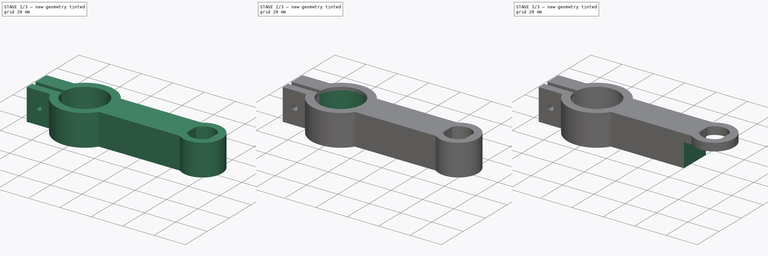
[diagram: build sequence overview — one tinted view per stage of 3, left to right]
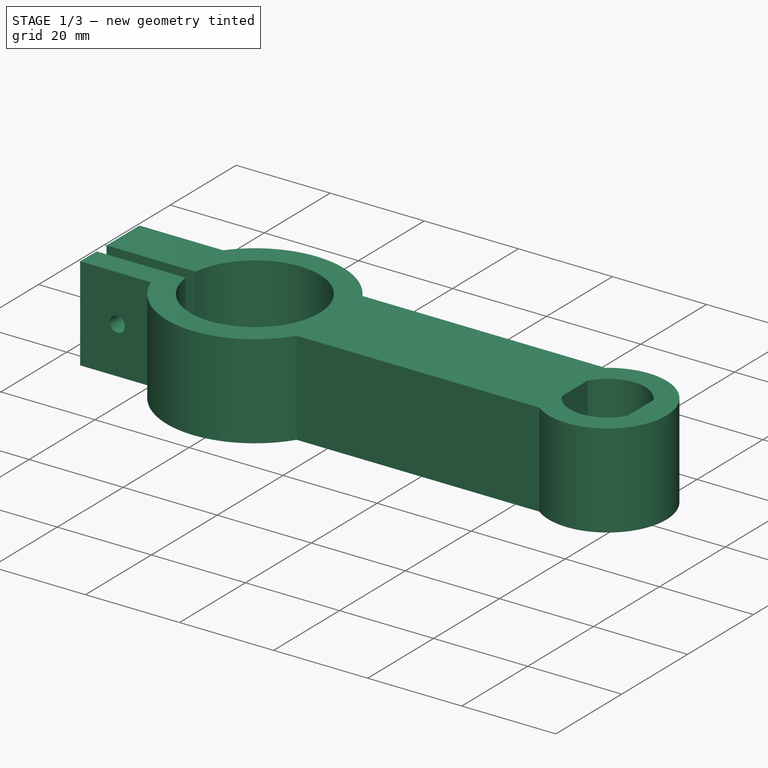
[diagram: stage 1 of 3 — iso view after this stage's code; geometry added in this stage tinted green]
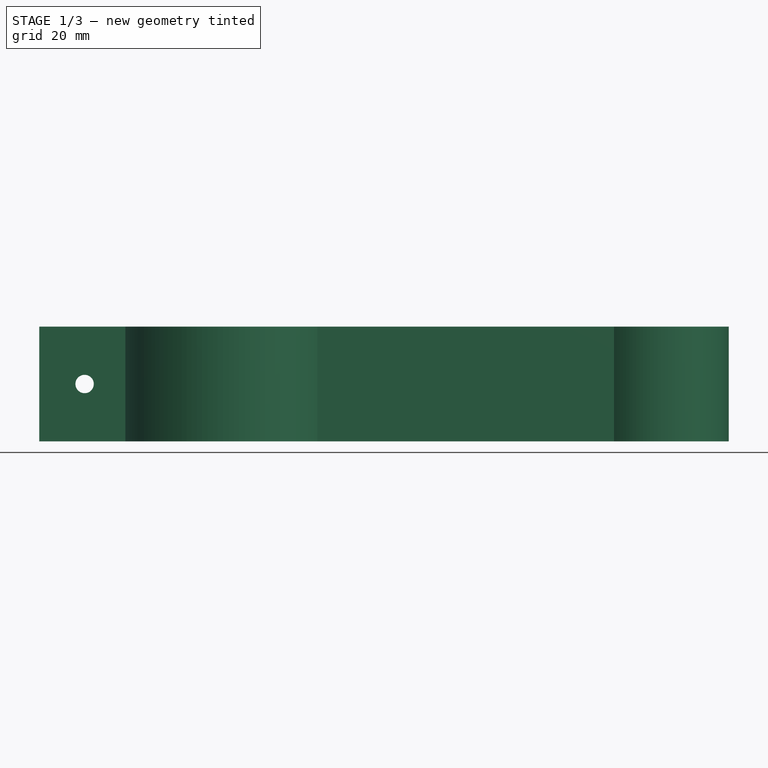
[diagram: stage 1 of 3 — front view after this stage's code; geometry added in this stage tinted green]
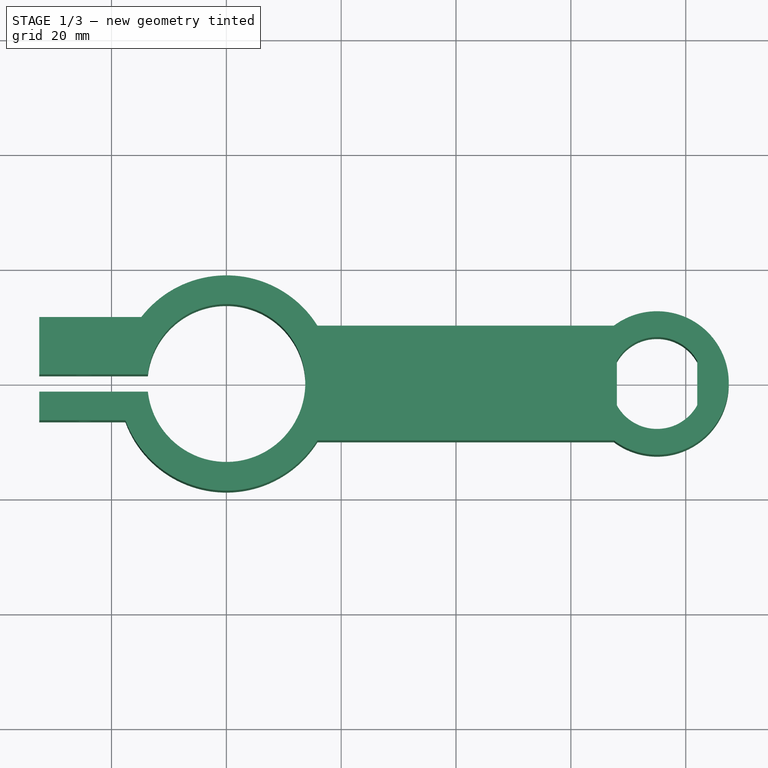
[diagram: stage 1 of 3 — top view after this stage's code; geometry added in this stage tinted green]
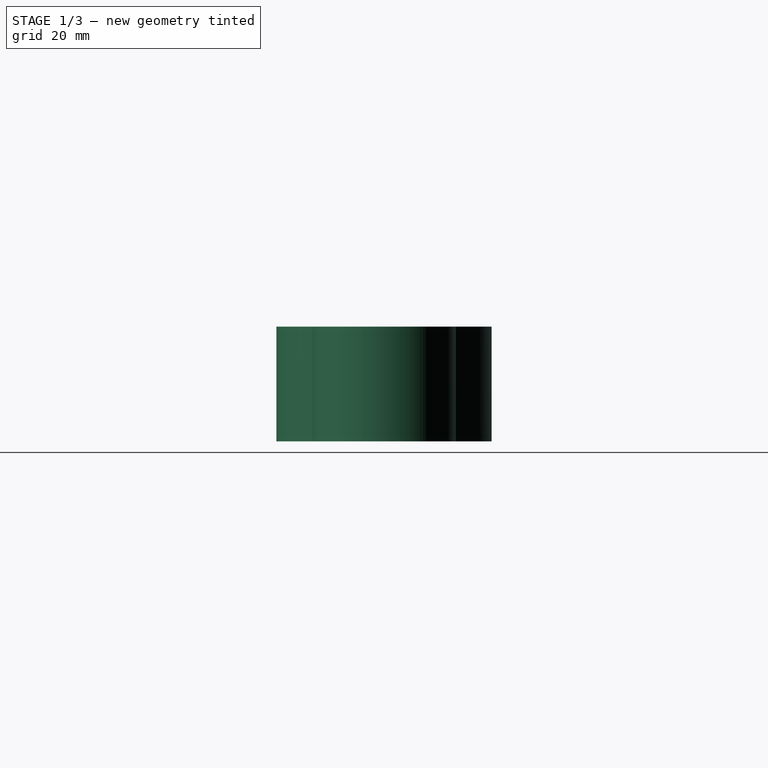
[diagram: stage 1 of 3 — right view after this stage's code; geometry added in this stage tinted green]
FCSTD DOCUMENT  (FreeCAD 1.0R39319 (Git))
Label: lteAntennaMount
License: All rights reserved
LicenseURL: https://en.wikipedia.org/wiki/All_rights_reserved
objects: Sketcher::SketchObject×6, PartDesign::Pocket×4, PartDesign::Pad×1, PartDesign::Groove×1, PartDesign::Body×1
note: 31 computed .brp shape members not serialized (recipe doc carries the construction recipe); baked Part::Feature solids carry a one-line shape summary decoded from their .brp

FEATURE [Sketcher::SketchObject] Sketch
  ArcFitTolerance = 1e-06
  AttachmentSupport = -> [XY_Plane]
  FullyConstrained = true
  MakeInternals = false
  MapMode = 5
  sketch-geometry (16):
    g0: ArcOfCircle CenterX=0 CenterY=0 CenterZ=0 NormalX=0 NormalY=0 NormalZ=1 AngleXU=0 Radius=18.75 StartAngle=3.49561 EndAngle=5.72065
    g1: LineSegment StartX=-13.6679 StartY=1.5 StartZ=0 EndX=-32.5873 EndY=1.5 EndZ=0
    g2: LineSegment StartX=-32.5873 StartY=1.5 StartZ=0 EndX=-32.5873 EndY=11.5 EndZ=0
    g3: LineSegment StartX=-32.5873 StartY=11.5 StartZ=0 EndX=-14.8092 EndY=11.5 EndZ=0
    g4: LineSegment StartX=-17.5873 StartY=-6.5 StartZ=0 EndX=-32.5873 EndY=-6.5 EndZ=0
    g5: LineSegment StartX=-32.5873 StartY=-6.5 StartZ=0 EndX=-32.5873 EndY=-1.5 EndZ=0
    g6: LineSegment StartX=-32.5873 StartY=-1.5 StartZ=0 EndX=-13.6679 EndY=-1.5 EndZ=0
    g7: ArcOfCircle CenterX=0 CenterY=0 CenterZ=0 NormalX=0 NormalY=0 NormalZ=1 AngleXU=0 Radius=13.75 StartAngle=3.2509 EndAngle=9.31547
    g8: LineSegment StartX=67.5 StartY=10 StartZ=0 EndX=15.8607 EndY=10 EndZ=0
    g9: LineSegment StartX=67.5 StartY=-10 StartZ=0 EndX=15.8607 EndY=-10 EndZ=0
    g10: ArcOfCircle CenterX=0 CenterY=0 CenterZ=0 NormalX=0 NormalY=0 NormalZ=1 AngleXU=0 Radius=18.75 StartAngle=0.562536 EndAngle=2.48132
    g11: ArcOfCircle CenterX=75 CenterY=-7.7e-15 CenterZ=0 NormalX=0 NormalY=0 NormalZ=1 AngleXU=0 Radius=12.5 StartAngle=4.06889 EndAngle=8.49748
    g12: ArcOfCircle CenterX=75 CenterY=-7.7e-15 CenterZ=0 NormalX=0 NormalY=0 NormalZ=1 AngleXU=0 Radius=8 StartAngle=3.64695 EndAngle=5.77782
    g13: LineSegment StartX=68 StartY=3.87298 StartZ=0 EndX=68 EndY=-3.87298 EndZ=0
    g14: LineSegment StartX=82 StartY=3.87298 StartZ=0 EndX=82 EndY=-3.87298 EndZ=0
    g15: ArcOfCircle CenterX=75 CenterY=-7.7e-15 CenterZ=0 NormalX=0 NormalY=0 NormalZ=1 AngleXU=0 Radius=8 StartAngle=0.505361 EndAngle=2.63623
  constraints (51):
    c: Diameter(g0) = 37.5
    c: Coincident(g0,g-1)
    c: Horizontal(g1)
    c: Coincident(g2,g1)
    c: Vertical(g2)
    c: Coincident(g3,g2)
    c: Horizontal(g3)
    c: DistanceY(g2,g2) = 10
    c: DistanceY(g-1,g1) = 1.5
    c: Coincident(g3,g10)
    c: Coincident(g4,g0)
    c: Horizontal(g4)
    c: Coincident(g5,g4)
    c: Vertical(g5)
    c: Coincident(g6,g5)
    c: Horizontal(g6)
    c: Coincident(g7,g0)
    c: Coincident(g7,g1)
    c: Coincident(g7,g6)
    c: Radius(g7) = 13.75
    c: DistanceX(g4,g4) = 15
    c: Horizontal(g8)
    c: Horizontal(g9)
    c: PointOnObject(g8,g10)
    c: DistanceY(g9,g8) = 20
    c: Equal(g0,g10)
    c: Coincident(g0,g9)
    c: PointOnObject(g10,g8)
    c: Coincident(g0,g10)
    c: DistanceY(g5,g5) = 5
    c: Distance(g-1,g6) = 1.5
    c: Equal(g1,g6)
    c: Diameter(g11) = 25
    c: Coincident(g11,g8)
    c: Coincident(g11,g9)
    c: Equal(g8,g9)
    c: Coincident(g12,g11)
    c: Diameter(g12) = 16
    c: Vertical(g13)
    c: PointOnObject(g14,g15)
    c: Parallel(g14,g13)
    c: Equal(g13,g14)
    c: Distance(g14,g13) = 14
    c: Coincident(g15,g13)
    c: Coincident(g12,g13)
    c: Equal(g12,g15)
    c: Coincident(g12,g14)
    c: PointOnObject(g15,g14)
    c: Coincident(g12,g15)
    c: Distance(g-1,g8) = 10
    c: DistanceX(g-1,g11) = 75
FEATURE [PartDesign::Pad] Pad
  Direction = (0,0,1)
  Length = 20
  Length2 = 10
  Midplane = true
  Profile = -> Sketch
  ReferenceAxis = -> Sketch [N_Axis]
  Refine = true
  Suppressed = false
  Type = 0
FEATURE [Sketcher::SketchObject] Sketch001
  ArcFitTolerance = 1e-06
  AttachmentSupport = -> [Pad]
  FullyConstrained = true
  MakeInternals = false
  MapMode = 5
  Placement = pos=(0,-6.5,0) rot=(1,0,0;1.5708rad)
  sketch-geometry (1):
    g0: Circle CenterX=-24.6847 CenterY=0 CenterZ=0 NormalX=0 NormalY=0 NormalZ=1 AngleXU=0 Radius=1.6
  constraints (3):
    c: PointOnObject(g0,g-1)
    c: Distance(g0,g-3) = 7.5
    c: Diameter(g0) = 3.2
FEATURE [PartDesign::Pocket] Pocket
  BaseFeature = -> Pad
  Direction = (0,1,-2e-16)
  Length = 0
  Length2 = 5
  Profile = -> Sketch001
  ReferenceAxis = -> Sketch001 [N_Axis]
  Refine = true
  Suppressed = false
  Type = 1
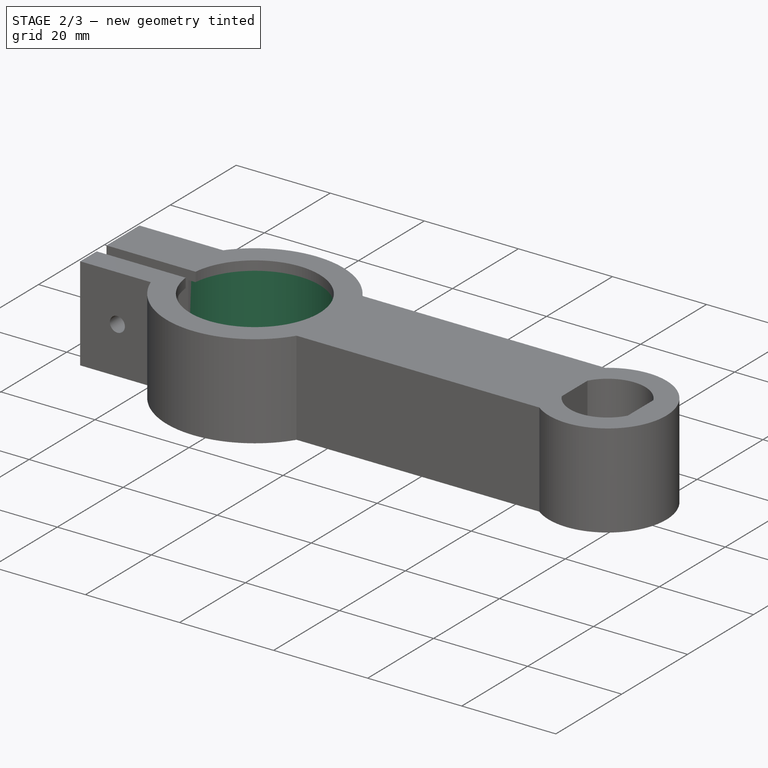
[diagram: stage 2 of 3 — iso view after this stage's code; geometry added in this stage tinted green]
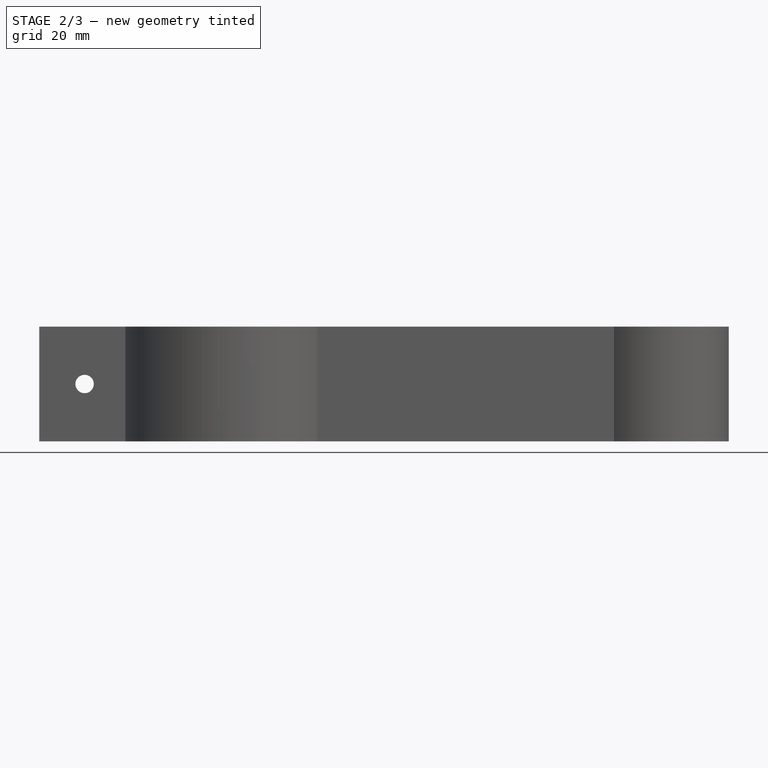
[diagram: stage 2 of 3 — front view after this stage's code; geometry added in this stage tinted green]
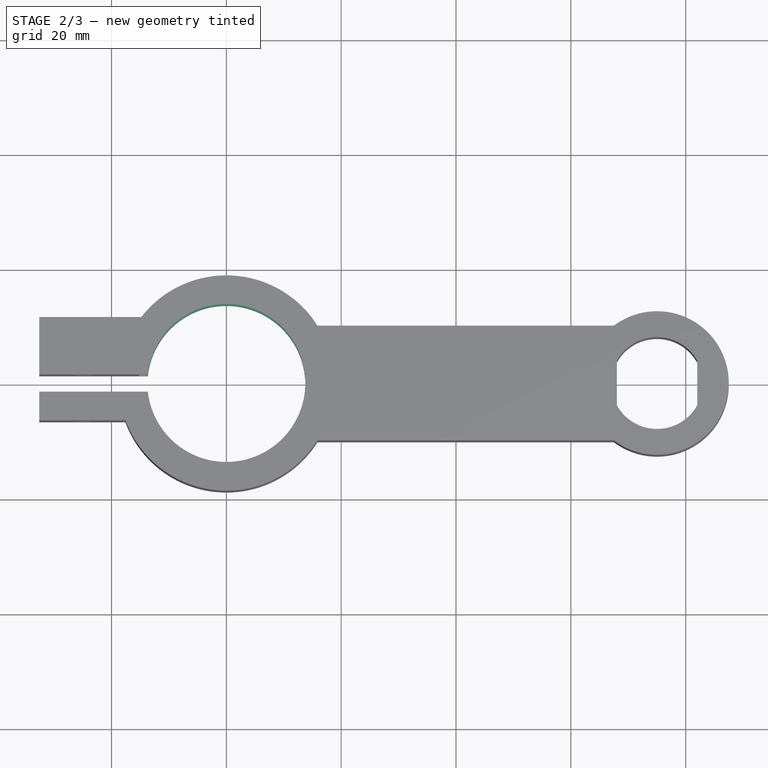
[diagram: stage 2 of 3 — top view after this stage's code; geometry added in this stage tinted green]
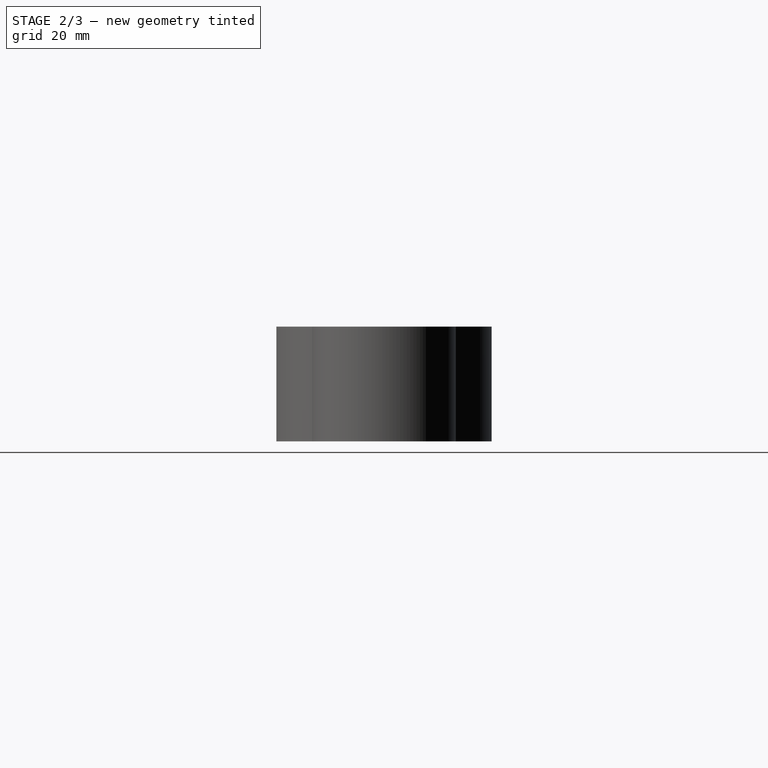
[diagram: stage 2 of 3 — right view after this stage's code; geometry added in this stage tinted green]
FEATURE [Sketcher::SketchObject] Sketch003
  ArcFitTolerance = 1e-06
  FullyConstrained = true
  MakeInternals = false
  MapMode = 5
  Placement = pos=(0,-12.5,0) rot=(1,0,0;1.5708rad)
  sketch-geometry (7):
    g0: LineSegment StartX=100.061 StartY=3.4641 StartZ=0 EndX=97.0614 EndY=1.73205 EndZ=0
    g1: LineSegment StartX=97.0614 StartY=1.73205 StartZ=0 EndX=97.0614 EndY=-1.73205 EndZ=0
    g2: LineSegment StartX=97.0614 StartY=-1.73205 StartZ=0 EndX=100.061 EndY=-3.4641 EndZ=0
    g3: LineSegment StartX=100.061 StartY=-3.4641 StartZ=0 EndX=103.061 EndY=-1.73205 EndZ=0
    g4: LineSegment StartX=103.061 StartY=-1.73205 StartZ=0 EndX=103.061 EndY=1.73205 EndZ=0
    g5: LineSegment StartX=103.061 StartY=1.73205 StartZ=0 EndX=100.061 EndY=3.4641 EndZ=0
    g6: Circle [constr] CenterX=100.061 CenterY=0 CenterZ=0 NormalX=0 NormalY=0 NormalZ=1 AngleXU=0 Radius=3.4641
  constraints (17):
    c: Coincident(g0,g1)
    c: Coincident(g1,g2)
    c: Coincident(g2,g3)
    c: Coincident(g3,g4)
    c: Coincident(g4,g5)
    c: Coincident(g5,g0)
    c: Equal(g0, g1-g5) x5
    c: PointOnObject(g0,g6)
    c: PointOnObject(g1,g6)
    c: PointOnObject(g2,g6)
    c: PointOnObject(g3,g6)
    c: PointOnObject(g4,g6)
    c: PointOnObject(g5,g6)
    c: PointOnObject(g6,g-1)
    c: Distance(g2,g5) = 6
    c: Distance(g6,g-3) = 7.5
    c: Parallel(g4,g-3)
FEATURE [PartDesign::Pocket] Pocket002
  BaseFeature = -> Pocket
  Direction = (0,1,-2e-16)
  Length = 5
  Length2 = 5
  Profile = -> Sketch003
  ReferenceAxis = -> Sketch003 [N_Axis]
  Refine = true
  Suppressed = false
  Type = 0
FEATURE [Sketcher::SketchObject] Sketch005
  ArcFitTolerance = 1e-06
  AttachmentSupport = -> [YZ_Plane]
  FullyConstrained = true
  MakeInternals = false
  MapMode = 5
  Placement = pos=(0,0,0) rot=(0.57735,0.57735,0.57735;2.0944rad)
  sketch-geometry (4):
    g0: LineSegment StartX=15.25 StartY=-8 StartZ=0 EndX=15.25 EndY=8 EndZ=0
    g1: LineSegment StartX=15.25 StartY=8 StartZ=0 EndX=0 EndY=8 EndZ=0
    g2: LineSegment StartX=15.25 StartY=-8 StartZ=0 EndX=0 EndY=-8 EndZ=0
    g3: LineSegment StartX=0 StartY=-8 StartZ=0 EndX=0 EndY=8 EndZ=0
  constraints (11):
    c: DistanceY(g0,g0) = 16
    c: Symmetric(g0,g0,g-1)
    c: Coincident(g1,g0)
    c: PointOnObject(g1,g-2)
    c: Horizontal(g1)
    c: Coincident(g2,g0)
    c: PointOnObject(g2,g-2)
    c: Horizontal(g2)
    c: Coincident(g3,g2)
    c: Coincident(g3,g1)
    c: DistanceX(g1,g1) = 15.25
FEATURE [PartDesign::Groove] Groove
  Angle = 360
  Angle2 = 60
  Axis = (0,0,1)
  Base = (0,0,0)
  BaseFeature = -> Pocket002
  Profile = -> Sketch005
  ReferenceAxis = -> Sketch005 [V_Axis]
  Refine = true
  Suppressed = false
  Type = 0
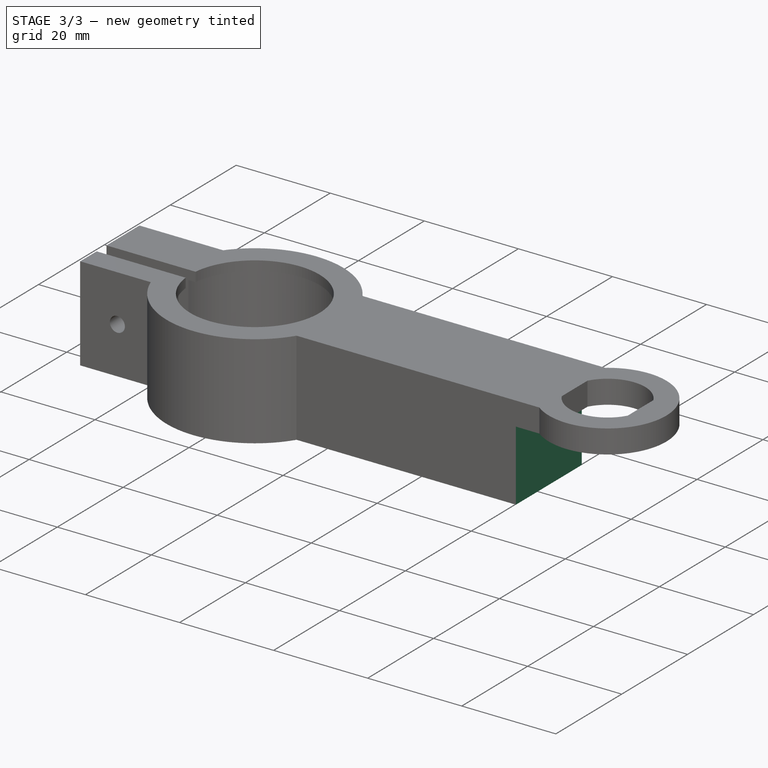
[diagram: stage 3 of 3 — iso view after this stage's code; geometry added in this stage tinted green]
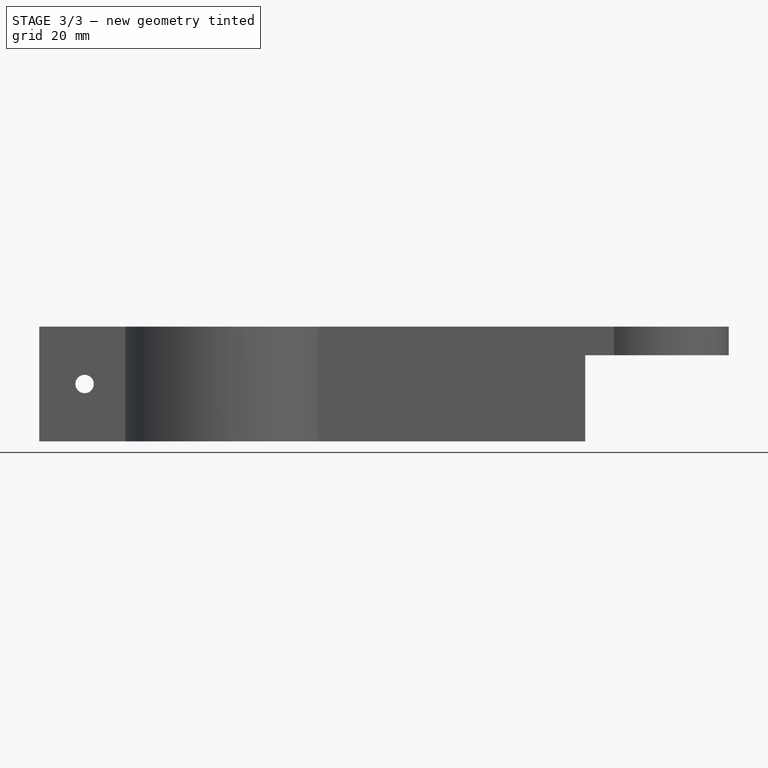
[diagram: stage 3 of 3 — front view after this stage's code; geometry added in this stage tinted green]
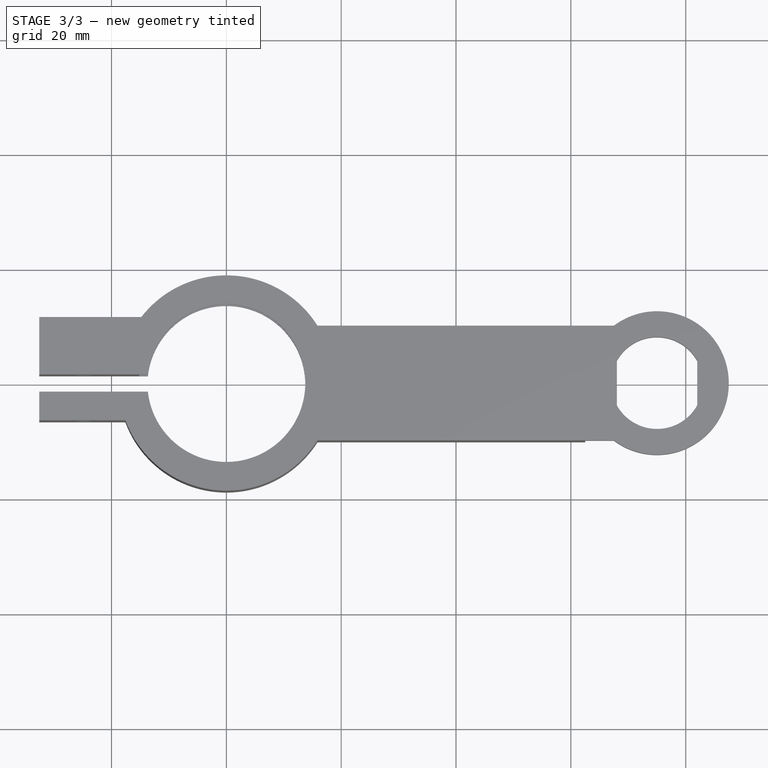
[diagram: stage 3 of 3 — top view after this stage's code; geometry added in this stage tinted green]
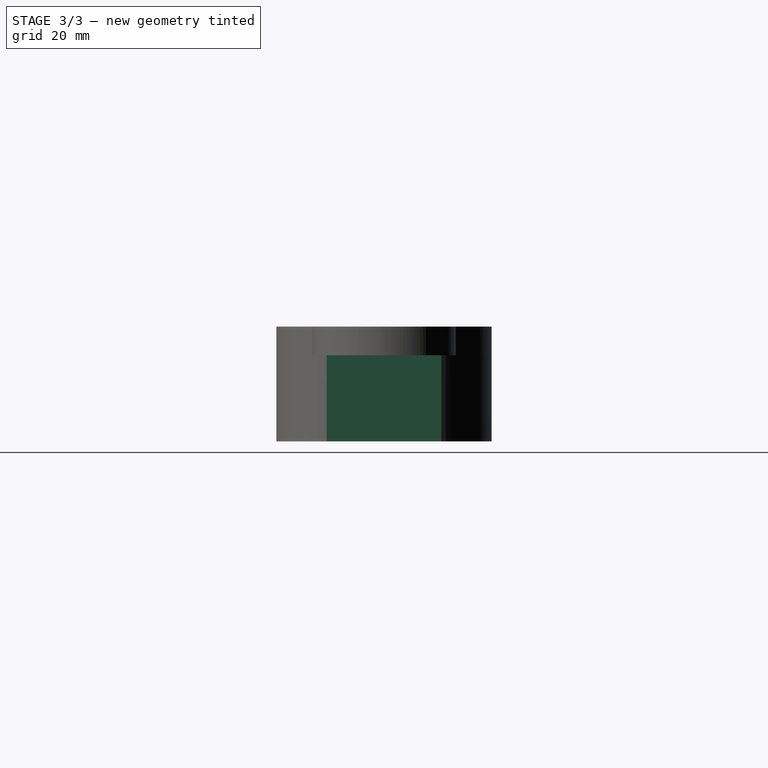
[diagram: stage 3 of 3 — right view after this stage's code; geometry added in this stage tinted green]
FEATURE [Sketcher::SketchObject] Sketch006
  ArcFitTolerance = 1e-06
  AttachmentSupport = -> [Groove]
  ExternalGeometry = -> [Groove]
  FullyConstrained = true
  MakeInternals = false
  MapMode = 5
  Placement = pos=(0,0,-10) rot=(1,0,0;3.14159rad)
  sketch-geometry (5):
    g0: Circle [constr] CenterX=75 CenterY=-2.8e-15 CenterZ=0 NormalX=0 NormalY=0 NormalZ=1 AngleXU=0 Radius=12.5
    g1: ArcOfCircle CenterX=75 CenterY=-2.8e-15 CenterZ=0 NormalX=0 NormalY=0 NormalZ=1 AngleXU=0 Radius=12.5 StartAngle=4.06889 EndAngle=8.49748
    g2: LineSegment StartX=67.5 StartY=10 StartZ=0 EndX=62.5 EndY=10 EndZ=0
    g3: LineSegment StartX=67.5 StartY=-10 StartZ=0 EndX=62.5 EndY=-10 EndZ=0
    g4: LineSegment StartX=62.5 StartY=-10 StartZ=0 EndX=62.5 EndY=10 EndZ=0
  constraints (13):
    c: Coincident(g0,g-4)
    c: Equal(g0,g-4)
    c: Coincident(g1,g0)
    c: Coincident(g1,g-4)
    c: Coincident(g2,g1)
    c: PointOnObject(g2,g-3)
    c: Coincident(g3,g1)
    c: PointOnObject(g3,g-5)
    c: Horizontal(g3)
    c: Coincident(g4,g3)
    c: Coincident(g4,g2)
    c: Equal(g3,g2)
    c: Tangent(g4,g0)
FEATURE [PartDesign::Pocket] Pocket003
  BaseFeature = -> Groove
  Direction = (0,0,1)
  Length = 15
  Length2 = 5
  Profile = -> Sketch006
  ReferenceAxis = -> Sketch006 [N_Axis]
  Refine = true
  Suppressed = false
  Type = 0
FEATURE [Sketcher::SketchObject] Sketch007
  ArcFitTolerance = 1e-06
  AttachmentSupport = -> [Pocket003]
  ExternalGeometry = -> [Pocket003]
  FullyConstrained = true
  MakeInternals = false
  MapMode = 5
  Placement = pos=(0,11.5,0) rot=(0,0.707107,0.707107;3.14159rad)
  sketch-geometry (7):
    g0: LineSegment StartX=24.6847 StartY=3.31976 StartZ=0 EndX=21.8097 EndY=1.65988 EndZ=0
    g1: LineSegment StartX=21.8097 StartY=1.65988 StartZ=0 EndX=21.8097 EndY=-1.65988 EndZ=0
    g2: LineSegment StartX=21.8097 StartY=-1.65988 StartZ=0 EndX=24.6847 EndY=-3.31976 EndZ=0
    g3: LineSegment StartX=24.6847 StartY=-3.31976 StartZ=0 EndX=27.5597 EndY=-1.65988 EndZ=0
    g4: LineSegment StartX=27.5597 StartY=-1.65988 StartZ=0 EndX=27.5597 EndY=1.65988 EndZ=0
    g5: LineSegment StartX=27.5597 StartY=1.65988 StartZ=0 EndX=24.6847 EndY=3.31976 EndZ=0
    g6: Circle [constr] CenterX=24.6847 CenterY=-4e-15 CenterZ=0 NormalX=0 NormalY=0 NormalZ=1 AngleXU=0 Radius=3.31976
  constraints (16):
    c: Coincident(g0,g1)
    c: Coincident(g1,g2)
    c: Coincident(g2,g3)
    c: Coincident(g3,g4)
    c: Coincident(g4,g5)
    c: Coincident(g5,g0)
    c: Equal(g0, g1-g5) x5
    c: PointOnObject(g0,g6)
    c: PointOnObject(g1,g6)
    c: PointOnObject(g2,g6)
    c: PointOnObject(g3,g6)
    c: PointOnObject(g4,g6)
    c: PointOnObject(g5,g6)
    c: Coincident(g6,g-3)
    c: Distance(g4,g1) = 5.75
    c: Perpendicular(g-1,g4)
FEATURE [PartDesign::Pocket] Pocket004
  BaseFeature = -> Pocket003
  Direction = (0,-1,2e-16)
  Length = 2.5
  Length2 = 5
  Profile = -> Sketch007
  ReferenceAxis = -> Sketch007 [N_Axis]
  Refine = true
  Suppressed = false
  Type = 0
FEATURE [PartDesign::Body] Body
  AllowCompound = false
  Group = -> [Sketch,Pad,Sketch001,Pocket,Sketch003,Pocket002,Sketch005,Groove,Sketch006,Pocket003,Sketch007,Pocket004]
  Origin = -> Origin
  Tip = -> Pocket004
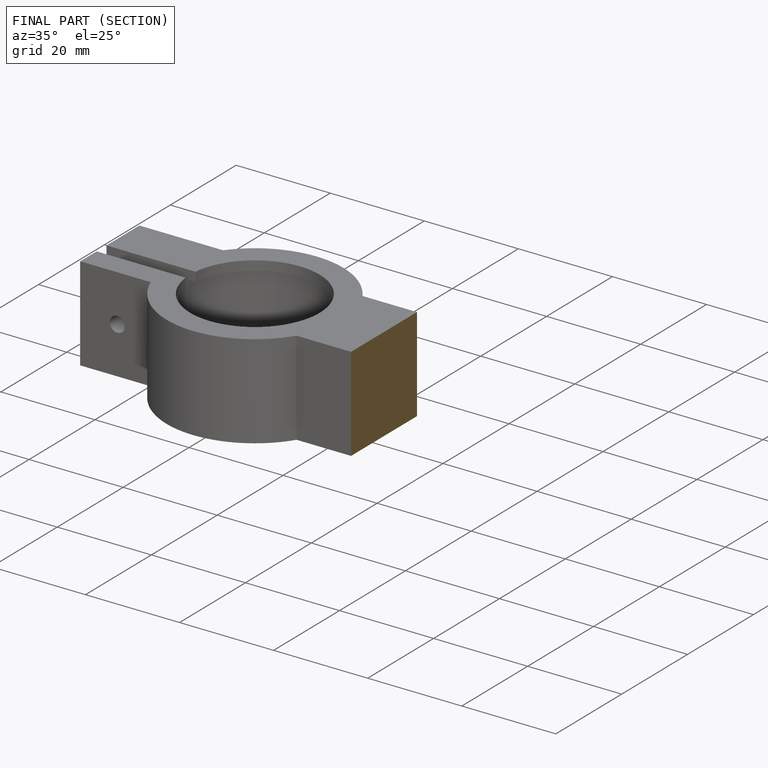
[diagram: finished part — half-section view (interior)]
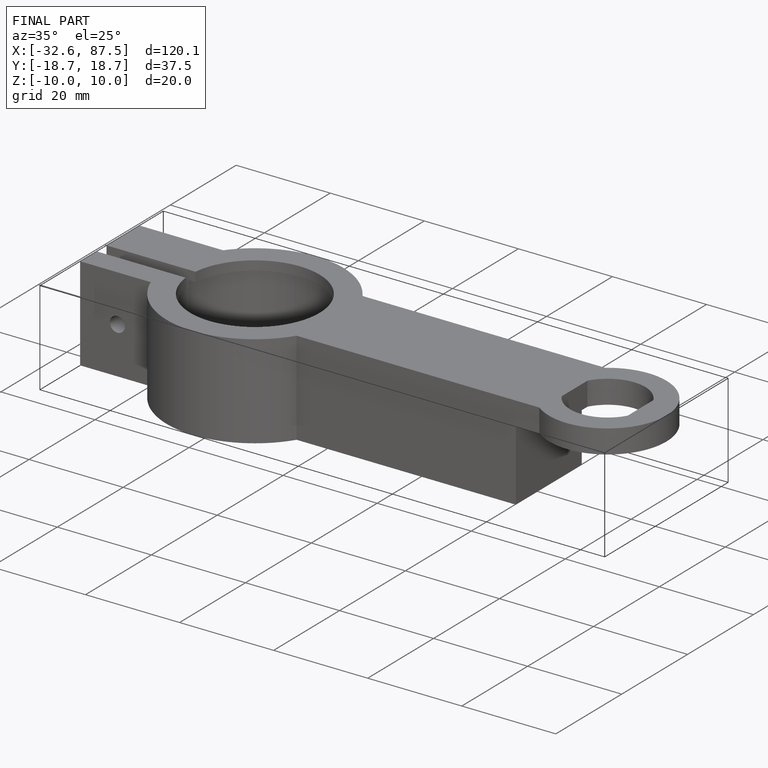
[diagram: finished part — iso view with bounding-box wireframe]
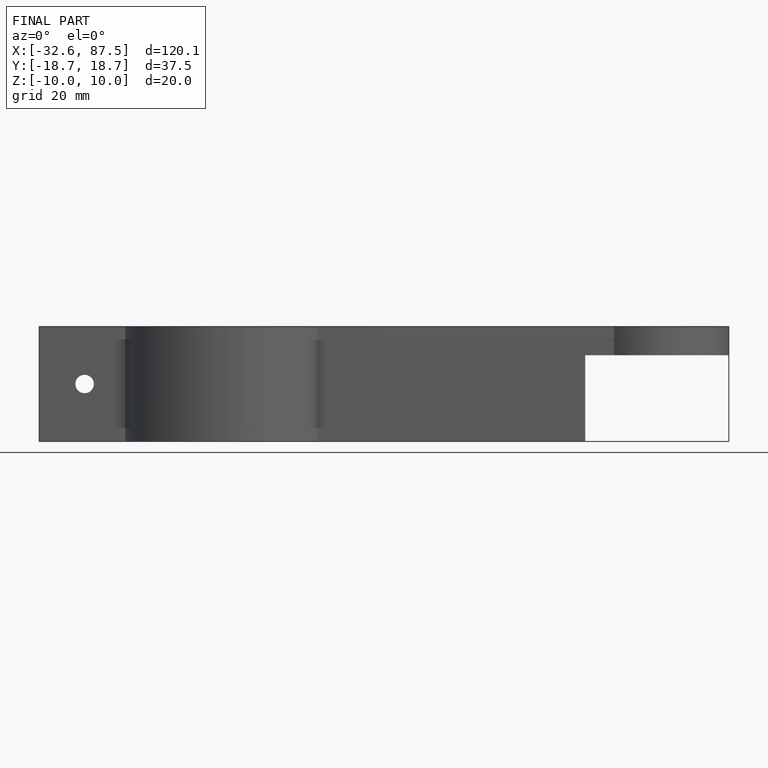
[diagram: finished part — front view with bounding-box wireframe]
